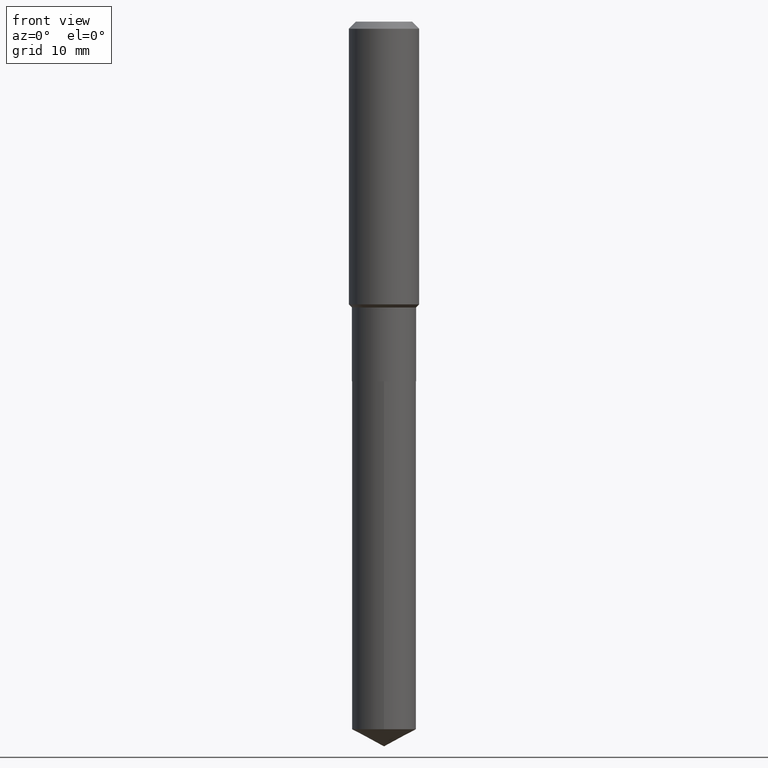
[diagram: clean part render]
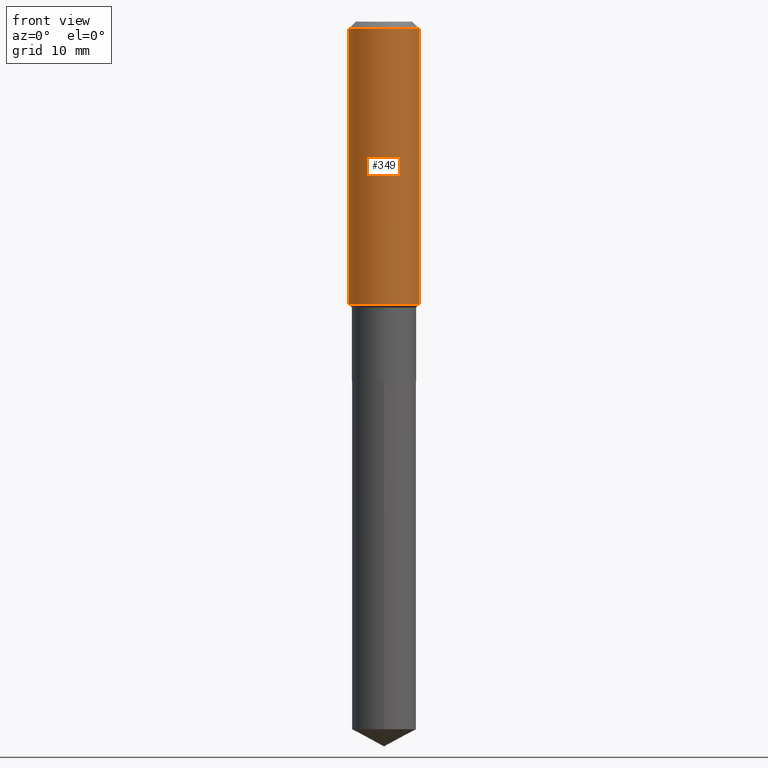
[diagram: same view with one face highlighted and labeled with its STEP entity id]
A machine part, front view. The second image highlights one B-rep face of the part: STEP entity #349.
In plain terms, the highlighted cylindrical surface (edge-blend (fillet) strip) has radius 5 mm, axis along (-0, 0, 1).
Its self-contained STEP definition (entity closure, byte-faithful):
#13 = EDGE_CURVE ( 'NONE', #380, #49, #65, .T. ) ;
#19 = CARTESIAN_POINT ( 'NONE',  ( 3.868609377944575708E-29, -5.523348903982912472E-15, -1.581949999999999523 ) ) ;
#22 = LINE ( 'NONE', #174, #335 ) ;
#39 = VERTEX_POINT ( 'NONE', #240 ) ;
#49 = VERTEX_POINT ( 'NONE', #474 ) ;
#52 = CYLINDRICAL_SURFACE ( 'NONE', #463, 0.1968500000000001082 ) ;
#56 = ORIENTED_EDGE ( 'NONE', *, *, #104, .T. ) ;
#59 = DIRECTION ( 'NONE',  ( 1.000000000000000000, -6.982962677686266711E-15, 4.876176775795935793E-29 ) ) ;
#65 = CIRCLE ( 'NONE', #188, 0.1968500000000000250 ) ;
#93 = DIRECTION ( 'NONE',  ( -2.445468806185136597E-29, 3.491481338843145583E-15, 1.000000000000000000 ) ) ;
#100 = DIRECTION ( 'NONE',  ( -2.445468806185136597E-29, 3.491481338843145583E-15, 1.000000000000000000 ) ) ;
#104 = EDGE_CURVE ( 'NONE', #229, #39, #289, .T. ) ;
#106 = CARTESIAN_POINT ( 'NONE',  ( 0.1968500000000001082, -1.374596203102542397E-15, 9.598753983154305062E-30 ) ) ;
#138 = FACE_OUTER_BOUND ( 'NONE', #440, .T. ) ;
#174 = CARTESIAN_POINT ( 'NONE',  ( -0.1968500000000001082, 1.398703375343757985E-15, -9.682923725166787881E-30 ) ) ;
#188 = AXIS2_PLACEMENT_3D ( 'NONE', #218, #100, #238 ) ;
#193 = DIRECTION ( 'NONE',  ( 1.000000000000000000, -6.982962677686265922E-15, 0.000000000000000000 ) ) ;
#200 = ORIENTED_EDGE ( 'NONE', *, *, #227, .T. ) ;
#218 = CARTESIAN_POINT ( 'NONE',  ( 9.627810689950954155E-31, -1.374596203102556547E-16, -0.03937000000000029365 ) ) ;
#226 = CARTESIAN_POINT ( 'NONE',  ( -0.1968500000000002192, -4.124645528639153107E-15, -1.581949999999999523 ) ) ;
#227 = EDGE_CURVE ( 'NONE', #39, #49, #260, .T. ) ;
#229 = VERTEX_POINT ( 'NONE', #226 ) ;
#238 = DIRECTION ( 'NONE',  ( 1.000000000000000000, -6.982962677686265922E-15, 0.000000000000000000 ) ) ;
#240 = CARTESIAN_POINT ( 'NONE',  ( 0.1968500000000002192, -6.897945107085455658E-15, -1.581949999999999523 ) ) ;
#241 = AXIS2_PLACEMENT_3D ( 'NONE', #19, #93, #193 ) ;
#260 = LINE ( 'NONE', #106, #470 ) ;
#276 = CARTESIAN_POINT ( 'NONE',  ( 0.000000000000000000, 0.000000000000000000, 0.000000000000000000 ) ) ;
#289 = CIRCLE ( 'NONE', #241, 0.1968500000000002192 ) ;
#319 = CARTESIAN_POINT ( 'NONE',  ( -0.1968500000000000250, -1.431700886802825647E-15, -0.03937000000000029365 ) ) ;
#335 = VECTOR ( 'NONE', #475, 39.37007874015748143 ) ;
#349 = ADVANCED_FACE ( 'NONE', ( #138 ), #52, .T. ) ;
#380 = VERTEX_POINT ( 'NONE', #319 ) ;
#411 = ORIENTED_EDGE ( 'NONE', *, *, #424, .F. ) ;
#414 = DIRECTION ( 'NONE',  ( -2.445468806185136877E-29, 3.491481338843145188E-15, 1.000000000000000000 ) ) ;
#424 = EDGE_CURVE ( 'NONE', #229, #380, #22, .T. ) ;
#431 = DIRECTION ( 'NONE',  ( -2.445468806185136597E-29, 3.491481338843145583E-15, 1.000000000000000000 ) ) ;
#440 = EDGE_LOOP ( 'NONE', ( #411, #56, #200, #464 ) ) ;
#463 = AXIS2_PLACEMENT_3D ( 'NONE', #276, #431, #59 ) ;
#464 = ORIENTED_EDGE ( 'NONE', *, *, #13, .F. ) ;
#470 = VECTOR ( 'NONE', #414, 39.37007874015748143 ) ;
#474 = CARTESIAN_POINT ( 'NONE',  ( 0.1968500000000000250, -1.512055823412797189E-15, -0.03937000000000029365 ) ) ;
#475 = DIRECTION ( 'NONE',  ( -2.445468806185136877E-29, 3.491481338843145188E-15, 1.000000000000000000 ) ) ;